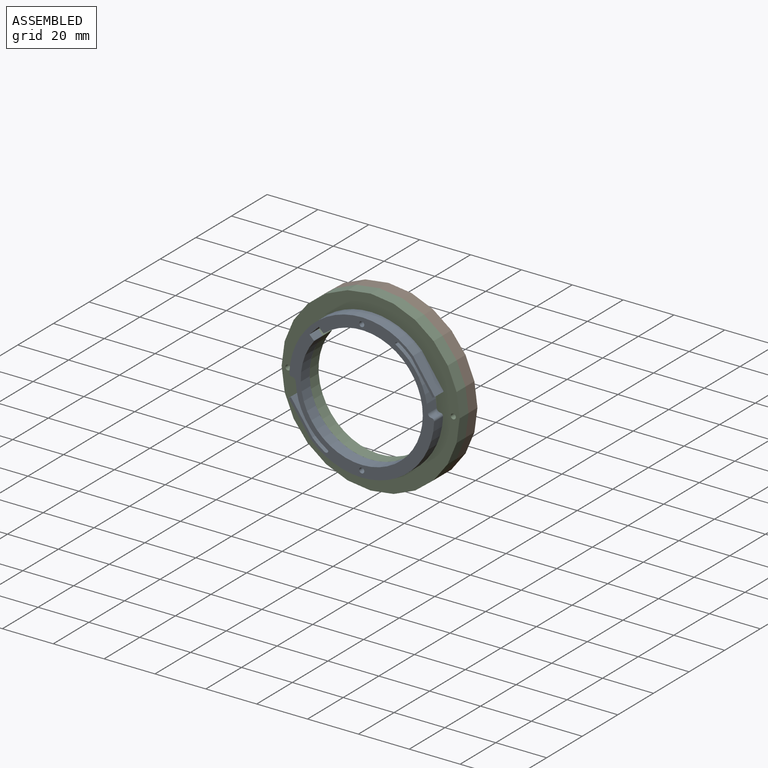
[diagram: assembled view]
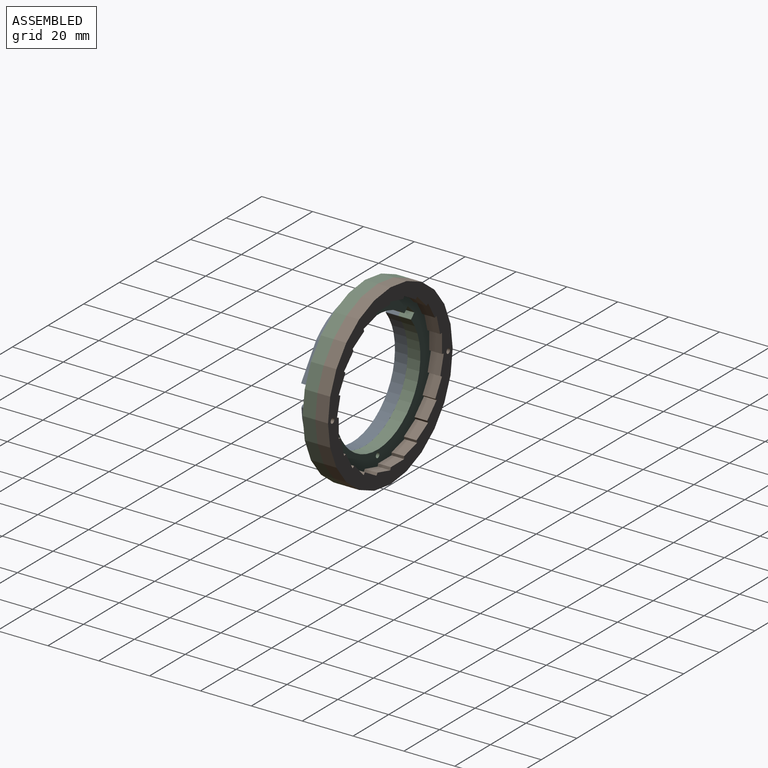
[diagram: assembled view, second angle]
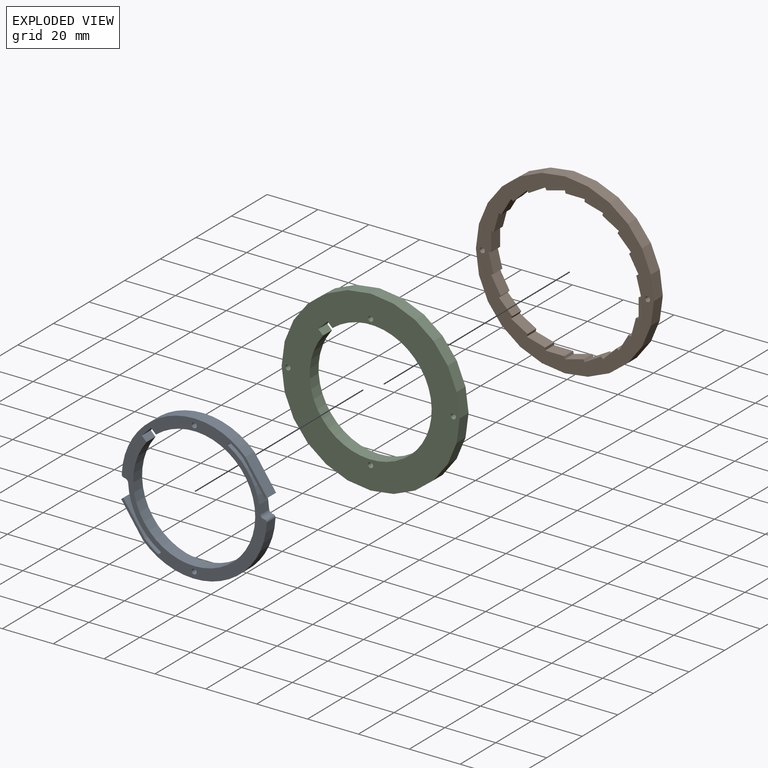
[diagram: exploded view]
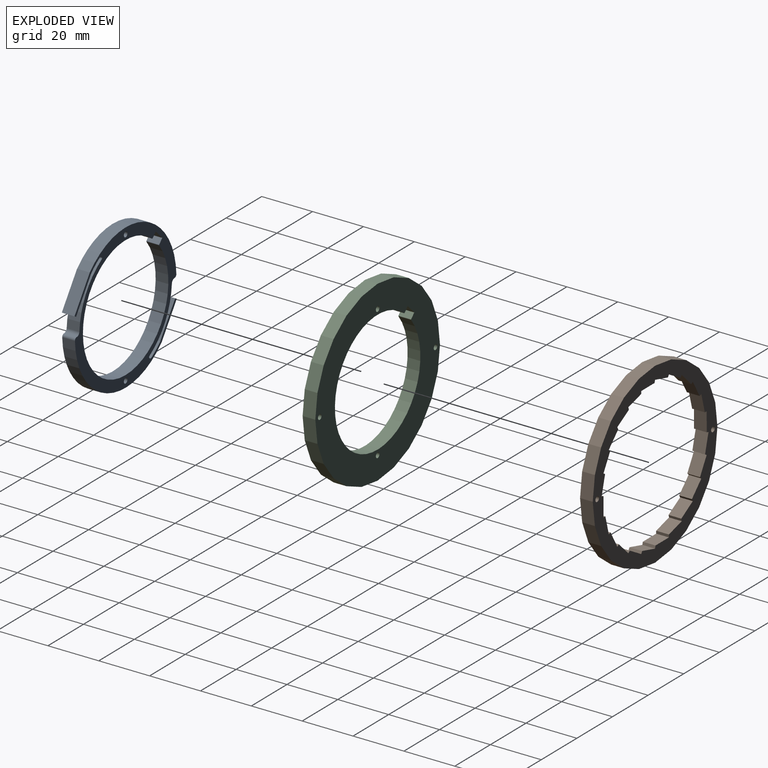
[diagram: exploded view, second angle]
ASSEMBLY  parts=3 mates=2
PART A: 32 faces, bbox 57.4x5x57 mm
  f0: plane 5x3.68mm, normal (0.71,0,-0.71), area 26mm2, adj f1,f29,f30,f31
  f1: plane 5x1.74mm, normal (-0.71,0,-0.71), area 12.3mm2, adj f0,f2,f30,f31
  f2: cylinder r=0.2mm len=5mm, axis (0,1,0), area 1.5mm2, adj f1,f3,f30,f31
  f3: cylinder r=24mm len=48mm, axis (0,1,0), area 726.2mm2, adj f2,f4,f30,f31
  f4: cylinder r=0.2mm len=5mm, axis (0,1,0), area 1.5mm2, adj f3,f29,f30,f31
  f5: cylinder r=0.5mm len=5mm, axis (0,1,0), area 3.8mm2, adj f6,f28,f30,f31
  f6: cylinder r=1mm len=5mm, axis (0,1,0), area 8mm2, adj f5,f7,f30,f31
  f7: cylinder r=27.48mm len=5mm, axis (0,1,0), area 30.8mm2, adj f6,f8,f30,f31
  f8: plane 12.09x8.41mm, normal (0.82,0,0.57), area 73.6mm2, adj f7,f9,f30,f31
  f9: plane 5x0.87mm, normal (-0.5,0,0.87), area 5mm2, adj f8,f10,f30,f31
  f10: plane 12.31x8.56mm, normal (-0.82,0,-0.57), area 75mm2, adj f9,f11,f30,f31
  f11: cylinder r=28.5mm len=48.63mm, axis (0,1,0), area 330.6mm2, adj f10,f12,f30,f31
  f12: cylinder r=1mm len=5mm, axis (0,1,0), area 8mm2, adj f11,f13,f30,f31
  f13: plane 5x0.02mm, normal (0,0,1), area 0.1mm2, adj f12,f14,f30,f31
  f14: cylinder r=1.5mm len=5mm, axis (0,1,0), area 11.4mm2, adj f13,f15,f30,f31
  f15: cylinder r=26mm len=20.85mm, axis (0,1,0), area 126.6mm2, adj f14,f16,f30,f31
  f16: cylinder r=0.5mm len=5mm, axis (0,1,0), area 3.8mm2, adj f15,f17,f30,f31
  f17: cylinder r=1mm len=5mm, axis (0,1,0), area 8mm2, adj f16,f18,f30,f31
  f18: cylinder r=27.48mm len=5mm, axis (0,1,0), area 30.8mm2, adj f17,f19,f30,f31
  f19: plane 12.09x8.41mm, normal (-0.82,0,-0.57), area 73.6mm2, adj f18,f20,f30,f31
  f20: plane 5x0.87mm, normal (0.5,0,-0.87), area 5mm2, adj f19,f21,f30,f31
  f21: plane 12.31x8.56mm, normal (0.82,0,0.57), area 75mm2, adj f20,f22,f30,f31
  f22: cylinder r=28.5mm len=48.63mm, axis (0,1,0), area 330.6mm2, adj f21,f23,f30,f31
  f23: cylinder r=1mm len=5mm, axis (0,1,0), area 8mm2, adj f22,f24,f30,f31
  f24: plane 5x0.02mm, normal (0,0,-1), area 0.1mm2, adj f23,f25,f30,f31
  f25: cylinder r=1.5mm len=5mm, axis (0,1,0), area 11.4mm2, adj f24,f28,f30,f31
  f26: cylinder r=1mm len=5mm, axis (0,1,0), area 31.4mm2, adj f30,f31
  f27: cylinder r=1mm len=5mm, axis (0,1,0), area 31.4mm2, adj f30,f31
  f28: cylinder r=26mm len=20.85mm, axis (0,1,0), area 126.6mm2, adj f5,f25,f30,f31
  f29: plane 5x1.74mm, normal (0.71,0,0.71), area 12.3mm2, adj f0,f4,f30,f31
  f30: plane 57.42x57mm, normal (0,-1,0), area 625.6mm2, adj f0,f1,f2,f3,f4,f5,f6,f7
  f31: plane 57.42x57mm, normal (0,1,0), area 625.6mm2, adj f0,f1,f2,f3,f4,f5,f6,f7
PART B: 76 faces, bbox 70x5x70 mm
  f0: plane 5x1.04mm, normal (-1,0,0), area 5.2mm2, adj f1,f73,f74,f75
  f1: plane 7.24x5mm, normal (-0.26,0,-0.97), area 37.5mm2, adj f0,f2,f74,f75
  f2: plane 5x1mm, normal (-0.97,0,0.26), area 5.2mm2, adj f1,f3,f74,f75
  f3: plane 6.5x5mm, normal (-0.5,0,-0.87), area 37.5mm2, adj f2,f4,f74,f75
  f4: plane 5x0.92mm, normal (-0.87,0,0.5), area 5.3mm2, adj f3,f5,f74,f75
  f5: plane 5.3x5.3mm, normal (-0.71,0,-0.71), area 37.5mm2, adj f4,f6,f74,f75
  f6: plane 5x0.75mm, normal (-0.71,0,0.71), area 5.3mm2, adj f5,f7,f74,f75
  f7: plane 6.5x5mm, normal (-0.87,0,-0.5), area 37.5mm2, adj f6,f8,f74,f75
  f8: plane 5x0.9mm, normal (-0.5,0,0.87), area 5.2mm2, adj f7,f9,f74,f75
  f9: plane 7.25x5mm, normal (-0.97,0,-0.26), area 37.5mm2, adj f8,f10,f74,f75
  f10: plane 5x1mm, normal (-0.26,0,0.97), area 5.2mm2, adj f9,f11,f74,f75
  f11: plane 7.5x5mm, normal (-1,0,0), area 37.5mm2, adj f10,f12,f74,f75
  f12: plane 5x1.08mm, normal (-0.13,0,0.99), area 5.4mm2, adj f11,f13,f74,f75
  f13: plane 7.09x5mm, normal (-0.97,0,0.26), area 36.7mm2, adj f12,f14,f74,f75
  f14: plane 5x1mm, normal (0.26,0,0.97), area 5.2mm2, adj f13,f15,f74,f75
  f15: plane 6.48x5mm, normal (-0.86,0,0.5), area 37.5mm2, adj f14,f16,f74,f75
  f16: plane 5x0.9mm, normal (0.5,0,0.86), area 5.2mm2, adj f15,f17,f74,f75
  f17: plane 5.32x5.29mm, normal (-0.71,0,0.71), area 37.5mm2, adj f16,f18,f74,f75
  f18: plane 5x0.73mm, normal (0.71,0,0.71), area 5.2mm2, adj f17,f19,f74,f75
  f19: plane 6.51x5mm, normal (-0.5,0,0.87), area 37.5mm2, adj f18,f20,f74,f75
  f20: plane 5x0.9mm, normal (0.87,0,0.5), area 5.2mm2, adj f19,f21,f74,f75
  f21: plane 7.25x5mm, normal (-0.26,0,0.97), area 37.5mm2, adj f20,f22,f74,f75
  f22: plane 5x1mm, normal (0.97,0,0.26), area 5.2mm2, adj f21,f23,f74,f75
  f23: plane 7.5x5mm, normal (0,0,1), area 37.5mm2, adj f22,f24,f74,f75
  f24: plane 5x1.04mm, normal (1,0,0), area 5.2mm2, adj f23,f25,f74,f75
  f25: plane 7.24x5mm, normal (0.26,0,0.97), area 37.5mm2, adj f24,f26,f74,f75
  f26: plane 5x1mm, normal (0.97,0,-0.26), area 5.2mm2, adj f25,f27,f74,f75
  f27: plane 6.48x5mm, normal (0.5,0,0.86), area 37.5mm2, adj f26,f28,f74,f75
  f28: plane 5x0.9mm, normal (0.86,0,-0.5), area 5.2mm2, adj f27,f29,f74,f75
  f29: plane 5.32x5.29mm, normal (0.71,0,0.71), area 37.5mm2, adj f28,f30,f74,f75
  f30: plane 5x0.73mm, normal (0.71,0,-0.71), area 5.2mm2, adj f29,f31,f74,f75
  f31: plane 6.51x5mm, normal (0.87,0,0.5), area 37.5mm2, adj f30,f32,f74,f75
  f32: plane 5x0.9mm, normal (0.5,0,-0.87), area 5.2mm2, adj f31,f33,f74,f75
  f33: plane 7.25x5mm, normal (0.97,0,0.26), area 37.5mm2, adj f32,f34,f74,f75
  f34: plane 5x1mm, normal (0.26,0,-0.97), area 5.2mm2, adj f33,f35,f74,f75
  f35: plane 7.5x5mm, normal (1,0,0), area 37.5mm2, adj f34,f36,f74,f75
  f36: plane 5x1.04mm, normal (0,0,-1), area 5.2mm2, adj f35,f37,f74,f75
  f37: plane 7.24x5mm, normal (0.97,0,-0.26), area 37.5mm2, adj f36,f38,f74,f75
  f38: plane 5x1mm, normal (-0.26,0,-0.97), area 5.2mm2, adj f37,f39,f74,f75
  f39: plane 6.48x5mm, normal (0.86,0,-0.5), area 37.5mm2, adj f38,f40,f74,f75
  f40: plane 5x0.9mm, normal (-0.5,0,-0.86), area 5.2mm2, adj f39,f41,f74,f75
  f41: plane 5.32x5.29mm, normal (0.71,0,-0.71), area 37.5mm2, adj f40,f42,f74,f75
  f42: plane 5x0.73mm, normal (-0.71,0,-0.71), area 5.2mm2, adj f41,f43,f74,f75
  f43: plane 6.51x5mm, normal (0.5,0,-0.87), area 37.5mm2, adj f42,f44,f74,f75
  f44: plane 5x0.9mm, normal (-0.87,0,-0.5), area 5.2mm2, adj f43,f45,f74,f75
  f45: plane 7.25x5mm, normal (0.26,0,-0.97), area 37.5mm2, adj f44,f46,f74,f75
  f46: plane 5x1mm, normal (-0.97,0,-0.26), area 5.2mm2, adj f45,f73,f74,f75
  f47: plane 9.06x5mm, normal (0.13,0,0.99), area 45.7mm2, adj f48,f70,f74,f75
  f48: plane 9.06x5mm, normal (-0.13,0,0.99), area 45.7mm2, adj f47,f49,f74,f75
  f49: plane 8.44x5mm, normal (-0.38,0,0.92), area 45.7mm2, adj f48,f50,f74,f75
  f50: plane 7.25x5.56mm, normal (-0.61,0,0.79), area 45.7mm2, adj f49,f51,f74,f75
  f51: plane 7.25x5.56mm, normal (-0.79,0,0.61), area 45.7mm2, adj f50,f52,f74,f75
  f52: plane 8.44x5mm, normal (-0.92,0,0.38), area 45.7mm2, adj f51,f53,f74,f75
  f53: plane 9.06x5mm, normal (-0.99,0,0.13), area 45.7mm2, adj f52,f54,f74,f75
  f54: plane 9.06x5mm, normal (-0.99,0,-0.13), area 45.7mm2, adj f53,f55,f74,f75
  f55: plane 8.44x5mm, normal (-0.92,0,-0.38), area 45.7mm2, adj f54,f56,f74,f75
  f56: plane 7.25x5.56mm, normal (-0.79,0,-0.61), area 45.7mm2, adj f55,f57,f74,f75
  f57: plane 7.25x5.56mm, normal (-0.61,0,-0.79), area 45.7mm2, adj f56,f58,f74,f75
  f58: plane 8.44x5mm, normal (-0.38,0,-0.92), area 45.7mm2, adj f57,f59,f74,f75
  f59: plane 9.06x5mm, normal (-0.13,0,-0.99), area 45.7mm2, adj f58,f60,f74,f75
  f60: plane 9.06x5mm, normal (0.13,0,-0.99), area 45.7mm2, adj f59,f61,f74,f75
  f61: plane 8.44x5mm, normal (0.38,0,-0.92), area 45.7mm2, adj f60,f62,f74,f75
  f62: plane 7.25x5.56mm, normal (0.61,0,-0.79), area 45.7mm2, adj f61,f63,f74,f75
  f63: plane 7.25x5.56mm, normal (0.79,0,-0.61), area 45.7mm2, adj f62,f64,f74,f75
  f64: plane 8.44x5mm, normal (0.92,0,-0.38), area 45.7mm2, adj f63,f65,f74,f75
  f65: plane 9.06x5mm, normal (0.99,0,-0.13), area 45.7mm2, adj f64,f66,f74,f75
  f66: plane 9.06x5mm, normal (0.99,0,0.13), area 45.7mm2, adj f65,f67,f74,f75
  f67: plane 8.44x5mm, normal (0.92,0,0.38), area 45.7mm2, adj f66,f68,f74,f75
  f68: plane 7.25x5.56mm, normal (0.79,0,0.61), area 45.7mm2, adj f67,f69,f74,f75
  f69: plane 7.25x5.56mm, normal (0.61,0,0.79), area 45.7mm2, adj f68,f70,f74,f75
  f70: plane 8.44x5mm, normal (0.38,0,0.92), area 45.7mm2, adj f47,f69,f74,f75
  f71: cylinder r=1mm len=5mm, axis (0,1,0), area 31.4mm2, adj f74,f75
  f72: cylinder r=1mm len=5mm, axis (0,1,0), area 31.4mm2, adj f74,f75
  f73: plane 7.5x5mm, normal (0,0,-1), area 37.5mm2, adj f0,f46,f74,f75
  f74: plane 70x70mm, normal (0,-1,0), area 1092.9mm2, adj f0,f1,f2,f3,f4,f5,f6,f7
  f75: plane 70x70mm, normal (0,1,0), area 1092.9mm2, adj f0,f1,f2,f3,f4,f5,f6,f7
PART C: 36 faces, bbox 70x5x70 mm
  f0: plane 9.06x5mm, normal (0.13,0,0.99), area 45.7mm2, adj f1,f33,f34,f35
  f1: plane 9.06x5mm, normal (-0.13,0,0.99), area 45.7mm2, adj f0,f2,f34,f35
  f2: plane 8.44x5mm, normal (-0.38,0,0.92), area 45.7mm2, adj f1,f3,f34,f35
  f3: plane 7.25x5.56mm, normal (-0.61,0,0.79), area 45.7mm2, adj f2,f4,f34,f35
  f4: plane 7.25x5.56mm, normal (-0.79,0,0.61), area 45.7mm2, adj f3,f5,f34,f35
  f5: plane 8.44x5mm, normal (-0.92,0,0.38), area 45.7mm2, adj f4,f6,f34,f35
  f6: plane 9.06x5mm, normal (-0.99,0,0.13), area 45.7mm2, adj f5,f7,f34,f35
  f7: plane 9.06x5mm, normal (-0.99,0,-0.13), area 45.7mm2, adj f6,f8,f34,f35
  f8: plane 8.44x5mm, normal (-0.92,0,-0.38), area 45.7mm2, adj f7,f9,f34,f35
  f9: plane 7.25x5.56mm, normal (-0.79,0,-0.61), area 45.7mm2, adj f8,f10,f34,f35
  f10: plane 7.25x5.56mm, normal (-0.61,0,-0.79), area 45.7mm2, adj f9,f11,f34,f35
  f11: plane 8.44x5mm, normal (-0.38,0,-0.92), area 45.7mm2, adj f10,f12,f34,f35
  f12: plane 9.06x5mm, normal (-0.13,0,-0.99), area 45.7mm2, adj f11,f13,f34,f35
  f13: plane 9.06x5mm, normal (0.13,0,-0.99), area 45.7mm2, adj f12,f14,f34,f35
  f14: plane 8.44x5mm, normal (0.38,0,-0.92), area 45.7mm2, adj f13,f15,f34,f35
  f15: plane 7.25x5.56mm, normal (0.61,0,-0.79), area 45.7mm2, adj f14,f16,f34,f35
  f16: plane 7.25x5.56mm, normal (0.79,0,-0.61), area 45.7mm2, adj f15,f17,f34,f35
  f17: plane 8.44x5mm, normal (0.92,0,-0.38), area 45.7mm2, adj f16,f18,f34,f35
  f18: plane 9.06x5mm, normal (0.99,0,-0.13), area 45.7mm2, adj f17,f19,f34,f35
  f19: plane 9.06x5mm, normal (0.99,0,0.13), area 45.7mm2, adj f18,f20,f34,f35
  f20: plane 8.44x5mm, normal (0.92,0,0.38), area 45.7mm2, adj f19,f21,f34,f35
  f21: plane 7.25x5.56mm, normal (0.79,0,0.61), area 45.7mm2, adj f20,f22,f34,f35
  f22: plane 7.25x5.56mm, normal (0.61,0,0.79), area 45.7mm2, adj f21,f33,f34,f35
  f23: plane 5x3.68mm, normal (0.71,0,-0.71), area 26mm2, adj f24,f28,f34,f35
  f24: plane 5x1.74mm, normal (-0.71,0,-0.71), area 12.3mm2, adj f23,f25,f34,f35
  f25: cylinder r=0.2mm len=5mm, axis (0,1,0), area 1.5mm2, adj f24,f26,f34,f35
  f26: cylinder r=24mm len=48mm, axis (0,1,0), area 726.2mm2, adj f25,f27,f34,f35
  f27: cylinder r=0.2mm len=5mm, axis (0,1,0), area 1.5mm2, adj f26,f28,f34,f35
  f28: plane 5x1.74mm, normal (0.71,0,0.71), area 12.3mm2, adj f23,f27,f34,f35
  f29: cylinder r=1mm len=5mm, axis (0,1,0), area 31.4mm2, adj f34,f35
  f30: cylinder r=1mm len=5mm, axis (0,1,0), area 31.4mm2, adj f34,f35
  f31: cylinder r=1mm len=5mm, axis (0,1,0), area 31.4mm2, adj f34,f35
  f32: cylinder r=1mm len=5mm, axis (0,1,0), area 31.4mm2, adj f34,f35
  f33: plane 8.44x5mm, normal (0.38,0,0.92), area 45.7mm2, adj f0,f22,f34,f35
  f34: plane 70x70mm, normal (0,-1,0), area 1969.3mm2, adj f0,f1,f2,f3,f4,f5,f6,f7
  f35: plane 70x70mm, normal (0,1,0), area 1969.3mm2, adj f0,f1,f2,f3,f4,f5,f6,f7
PLACE A t=(-21.39,-8.33,-10.89)mm
PLACE B t=(-21.39,1.67,-10.89)mm
PLACE C t=(-21.39,-3.33,-10.89)mm
MATE fastened C.f30 <-> B.f71  axis (0,1,0) through (-53.89,-3.33,-10.89)mm
MATE fastened C.f29 <-> A.f26  axis (0,-1,0) through (-21.39,-8.33,15.11)mm
